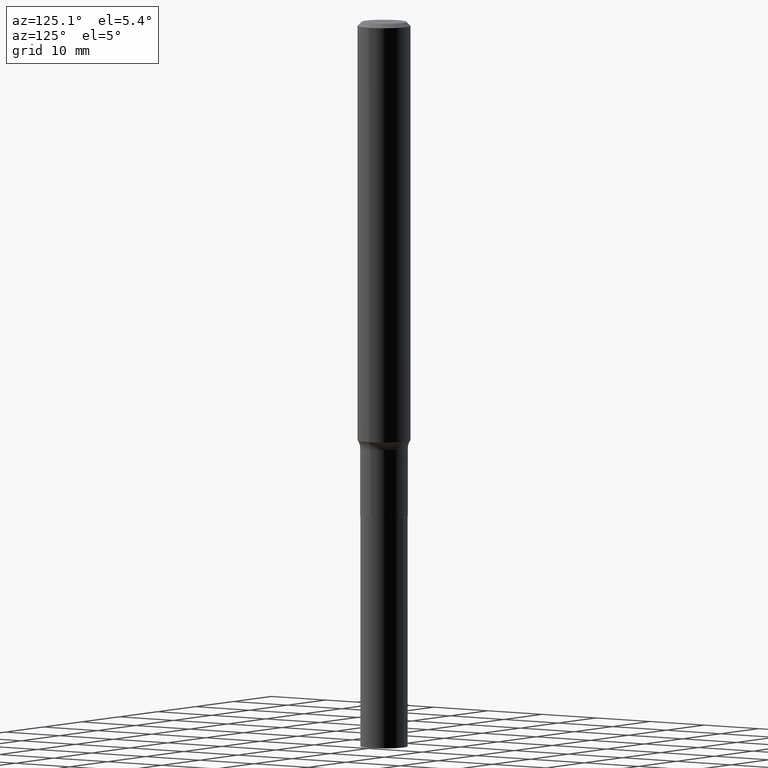
[diagram: clean part render]
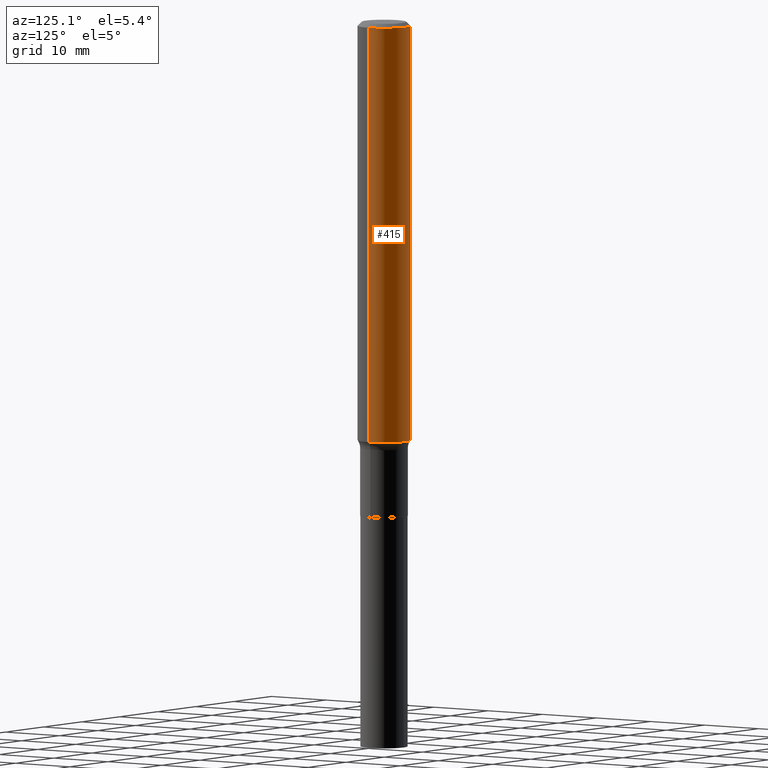
[diagram: same view with one face highlighted and labeled with its STEP entity id]
A machine part, auxiliary view. The second image highlights one B-rep face of the part: STEP entity #415.
In plain terms, the highlighted cylindrical surface (edge-blend (fillet) strip) has radius 4.0005 mm, axis along (-0, 0, 1).
Its self-contained STEP definition (entity closure, byte-faithful):
#22 = ORIENTED_EDGE ( 'NONE', *, *, #65, .T. ) ;
#33 = EDGE_CURVE ( 'NONE', #156, #220, #56, .T. ) ;
#38 = CYLINDRICAL_SURFACE ( 'NONE', #152, 0.1575000000000001676 ) ;
#49 = DIRECTION ( 'NONE',  ( 1.000000000000000000, -6.982962677686272233E-15, 0.000000000000000000 ) ) ;
#56 = LINE ( 'NONE', #162, #106 ) ;
#65 = EDGE_CURVE ( 'NONE', #443, #156, #235, .T. ) ;
#71 = ORIENTED_EDGE ( 'NONE', *, *, #388, .F. ) ;
#88 = VECTOR ( 'NONE', #128, 39.37007874015748143 ) ;
#95 = AXIS2_PLACEMENT_3D ( 'NONE', #387, #312, #49 ) ;
#103 = DIRECTION ( 'NONE',  ( -2.445468806185136597E-29, 3.491481338843145583E-15, 1.000000000000000000 ) ) ;
#106 = VECTOR ( 'NONE', #131, 39.37007874015748143 ) ;
#121 = LINE ( 'NONE', #196, #88 ) ;
#128 = DIRECTION ( 'NONE',  ( -2.445468806185136877E-29, 3.491481338843145188E-15, 1.000000000000000000 ) ) ;
#131 = DIRECTION ( 'NONE',  ( -2.445468806185136877E-29, 3.491481338843145188E-15, 1.000000000000000000 ) ) ;
#152 = AXIS2_PLACEMENT_3D ( 'NONE', #186, #195, #416 ) ;
#156 = VERTEX_POINT ( 'NONE', #324 ) ;
#162 = CARTESIAN_POINT ( 'NONE',  ( -0.1575000000000001676, 1.119104808822158984E-15, -7.747322767151485392E-30 ) ) ;
#186 = CARTESIAN_POINT ( 'NONE',  ( 0.000000000000000000, 0.000000000000000000, 0.000000000000000000 ) ) ;
#195 = DIRECTION ( 'NONE',  ( -2.445468806185136597E-29, 3.491481338843145583E-15, 1.000000000000000000 ) ) ;
#196 = CARTESIAN_POINT ( 'NONE',  ( 0.1575000000000001676, -1.099816621735588269E-15, 7.679978421878606441E-30 ) ) ;
#219 = ORIENTED_EDGE ( 'NONE', *, *, #33, .T. ) ;
#220 = VERTEX_POINT ( 'NONE', #466 ) ;
#235 = CIRCLE ( 'NONE', #95, 0.1575000000000003064 ) ;
#273 = CARTESIAN_POINT ( 'NONE',  ( 0.1575000000000000011, -1.182302868365756679E-15, -0.02362500000000014588 ) ) ;
#292 = EDGE_LOOP ( 'NONE', ( #22, #219, #363, #71 ) ) ;
#300 = EDGE_CURVE ( 'NONE', #405, #220, #452, .T. ) ;
#312 = DIRECTION ( 'NONE',  ( -2.445468806185136597E-29, 3.491481338843145583E-15, 1.000000000000000000 ) ) ;
#324 = CARTESIAN_POINT ( 'NONE',  ( -0.1575000000000002232, -7.611467020109086398E-15, -2.500535154463693122 ) ) ;
#328 = DIRECTION ( 'NONE',  ( 1.000000000000000000, -6.982962677686265922E-15, 0.000000000000000000 ) ) ;
#361 = AXIS2_PLACEMENT_3D ( 'NONE', #362, #103, #328 ) ;
#362 = CARTESIAN_POINT ( 'NONE',  ( 5.777420054612421104E-31, -8.248624663016984002E-17, -0.02362500000000014588 ) ) ;
#363 = ORIENTED_EDGE ( 'NONE', *, *, #300, .F. ) ;
#376 = FACE_OUTER_BOUND ( 'NONE', #292, .T. ) ;
#383 = CARTESIAN_POINT ( 'NONE',  ( 0.1575000000000002232, -9.830388450666835426E-15, -2.500535154463693122 ) ) ;
#387 = CARTESIAN_POINT ( 'NONE',  ( 6.114980719010292811E-29, -8.730571828931245579E-15, -2.500535154463693122 ) ) ;
#388 = EDGE_CURVE ( 'NONE', #443, #405, #121, .T. ) ;
#405 = VERTEX_POINT ( 'NONE', #273 ) ;
#415 = ADVANCED_FACE ( 'NONE', ( #376 ), #38, .T. ) ;
#416 = DIRECTION ( 'NONE',  ( 1.000000000000000000, -6.982962677686267499E-15, 4.876176775795935232E-29 ) ) ;
#443 = VERTEX_POINT ( 'NONE', #383 ) ;
#452 = CIRCLE ( 'NONE', #361, 0.1575000000000000011 ) ;
#466 = CARTESIAN_POINT ( 'NONE',  ( -0.1575000000000000011, -3.287424228958547123E-15, -0.02362500000000014588 ) ) ;